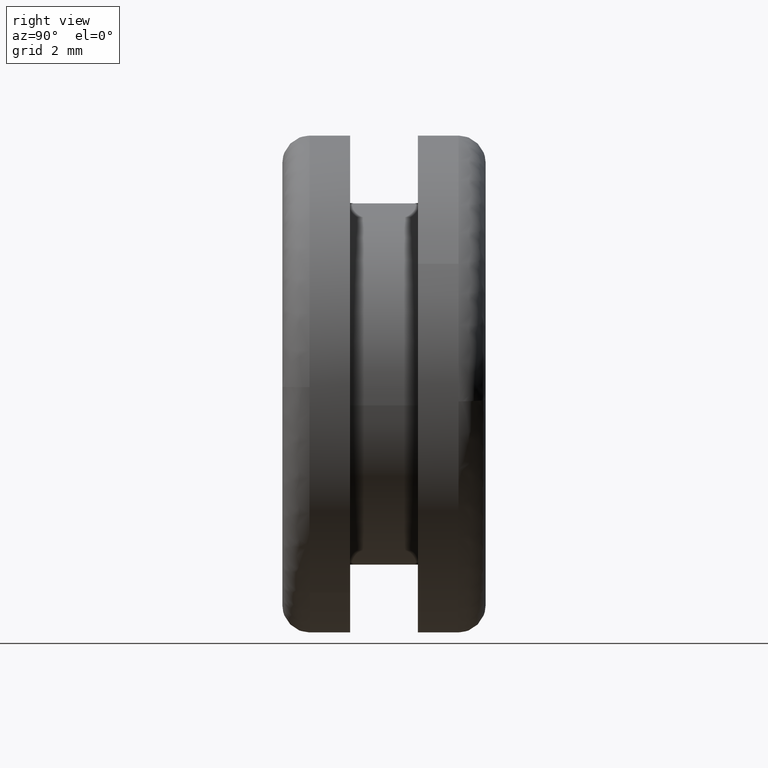
[diagram: clean part render]
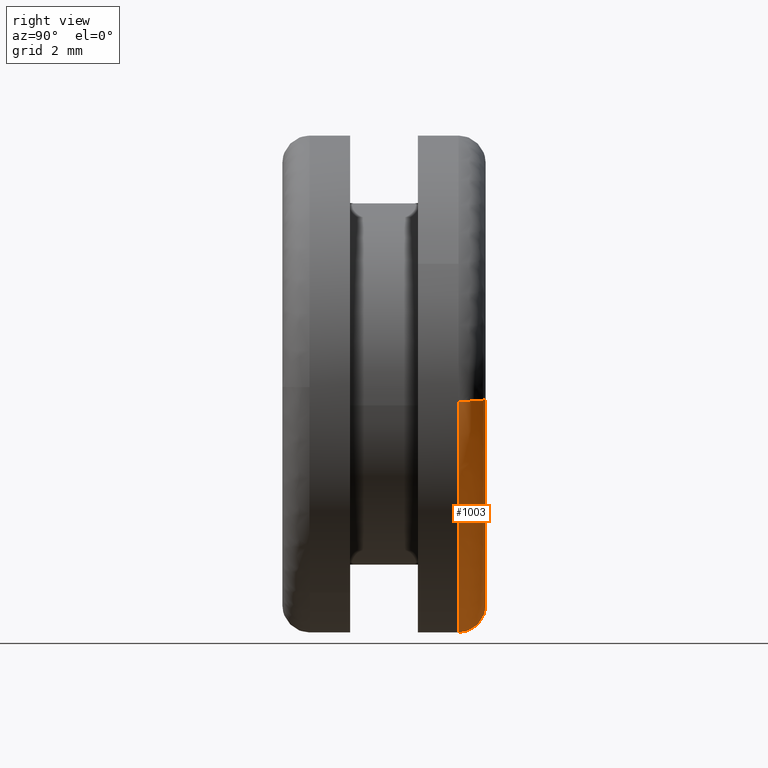
[diagram: same view with one face highlighted and labeled with its STEP entity id]
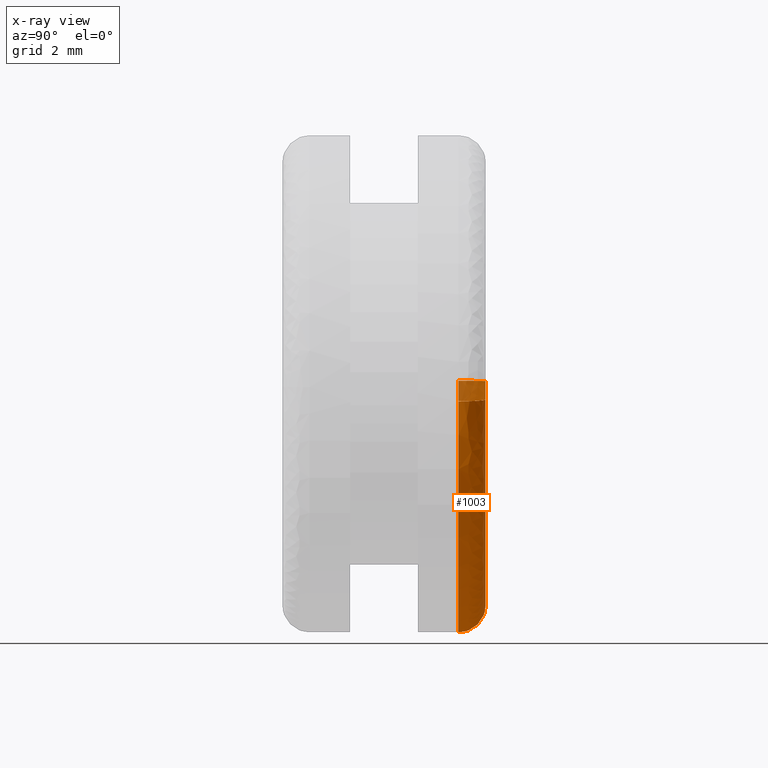
[diagram: x-ray of the same camera — body ghosted, the highlighted face saturated]
A machine part, right view. The second image highlights one B-rep face of the part: STEP entity #1003.
The next image is the same camera in x-ray: the body ghosted, the highlighted face saturated — about 8% of this face is hidden behind the body in this view.
In plain terms, the highlighted face is a freeform B-spline surface patch.
Its self-contained STEP definition (entity closure, byte-faithful):
#563=CARTESIAN_POINT('',(5.486611206122207,3.900000000027497,-0.383532883667365));
#564=VERTEX_POINT('',#563);
#614=CARTESIAN_POINT('',(-5.499565743120950,3.900000000027497,0.069113219361356));
#615=VERTEX_POINT('',#614);
#629=CARTESIAN_POINT('',(0.0,3.900000000000000,-5.500000000000000));
#630=VERTEX_POINT('',#629);
#631=CARTESIAN_POINT('',(-5.499565743120950,3.900000000027497,0.069113219361356));
#632=CARTESIAN_POINT('',(-5.500000000000000,3.900000000000000,0.034557973958313));
#633=CARTESIAN_POINT('',(-5.500000000000000,3.900000000000000,-1.928755E-016));
#634=CARTESIAN_POINT('',(-5.500000000000001,3.899999999999999,-5.500000000000001));
#635=CARTESIAN_POINT('',(0.0,3.900000000000000,-5.500000000000000));
#643=(BOUNDED_CURVE()B_SPLINE_CURVE(2,(#631,#632,#633,#634,#635),.UNSPECIFIED.,.F.,.U.)B_SPLINE_CURVE_WITH_KNOTS((3,2,3),(0.747784295921542,0.750000000000000,1.0),.UNSPECIFIED.)CURVE()GEOMETRIC_REPRESENTATION_ITEM()RATIONAL_B_SPLINE_CURVE((0.994854295643583,0.997404141202089,1.0,0.707106781186548,1.0))REPRESENTATION_ITEM(''));
#644=EDGE_CURVE('',#615,#630,#643,.T.);
#646=CARTESIAN_POINT('',(0.0,3.900000000000000,-5.500000000000000));
#647=CARTESIAN_POINT('',(5.128952659961843,3.900000000000000,-5.500000000000000));
#648=CARTESIAN_POINT('',(5.486611206122207,3.900000000027497,-0.383532883667365));
#656=(BOUNDED_CURVE()B_SPLINE_CURVE(2,(#646,#647,#648),.UNSPECIFIED.,.F.,.U.)B_SPLINE_CURVE_WITH_KNOTS((3,3),(0.0,0.237833686534982),.UNSPECIFIED.)CURVE()GEOMETRIC_REPRESENTATION_ITEM()RATIONAL_B_SPLINE_CURVE((1.0,0.721360504033998,0.972879876386744))REPRESENTATION_ITEM(''));
#657=EDGE_CURVE('',#630,#564,#656,.T.);
#879=CARTESIAN_POINT('',(4.888071801949449,4.500000000000000,-0.341692932736474));
#880=VERTEX_POINT('',#879);
#881=CARTESIAN_POINT('',(4.888071801949449,4.500000000000000,-0.341692932736474));
#882=CARTESIAN_POINT('',(5.486611206067517,4.499999999735634,-0.383532883661093));
#883=CARTESIAN_POINT('',(5.486611206122207,3.900000000027497,-0.383532883667365));
#891=(BOUNDED_CURVE()B_SPLINE_CURVE(2,(#881,#882,#883),.UNSPECIFIED.,.F.,.U.)B_SPLINE_CURVE_WITH_KNOTS((3,3),(-1.725134642829971,-0.274865356812178),.UNSPECIFIED.)CURVE()GEOMETRIC_REPRESENTATION_ITEM()RATIONAL_B_SPLINE_CURVE((0.863472075215113,0.610566959956445,0.863472075339921))REPRESENTATION_ITEM(''));
#892=EDGE_CURVE('',#880,#564,#891,.T.);
#911=CARTESIAN_POINT('',(-4.899613116827728,4.500000000000000,0.061573595447684));
#912=VERTEX_POINT('',#911);
#926=CARTESIAN_POINT('',(-4.899613116827728,4.500000000000001,0.061573595447684));
#927=CARTESIAN_POINT('',(-5.499565743065997,4.499999999541491,0.069113219357744));
#928=CARTESIAN_POINT('',(-5.499565743120951,3.900000000027497,0.069113219361356));
#936=(BOUNDED_CURVE()B_SPLINE_CURVE(2,(#926,#927,#928),.UNSPECIFIED.,.F.,.U.)B_SPLINE_CURVE_WITH_KNOTS((3,3),(-1.725134642498151,-0.274865356812179),.UNSPECIFIED.)CURVE()GEOMETRIC_REPRESENTATION_ITEM()RATIONAL_B_SPLINE_CURVE((0.883342149373452,0.624617224284153,0.883342149619523))REPRESENTATION_ITEM(''));
#937=EDGE_CURVE('',#912,#615,#936,.T.);
#944=CARTESIAN_POINT('',(-4.857893936947161,4.498547604767666,0.061049309157582));
#945=CARTESIAN_POINT('',(-4.918943246104742,4.498547604767666,-4.796844627789580));
#946=CARTESIAN_POINT('',(-0.061049309157583,4.498547604767666,-4.857893936947161));
#947=CARTESIAN_POINT('',(4.526519540871593,4.498547604767665,-4.915546062053692));
#948=CARTESIAN_POINT('',(4.846450894045051,4.498547604767666,-0.338783488952053));
#949=CARTESIAN_POINT('',(-5.546084300077691,4.546522521817598,0.069697819558043));
#950=CARTESIAN_POINT('',(-5.615782119635735,4.546522521817599,-5.476386480519647));
#951=CARTESIAN_POINT('',(-0.069697819558044,4.546522521817598,-5.546084300077691));
#952=CARTESIAN_POINT('',(5.167765967200014,4.546522521817599,-5.611903675730915));
#953=CARTESIAN_POINT('',(5.533020185996930,4.546522521817598,-0.386777030044277));
#954=CARTESIAN_POINT('',(-5.498113481384098,3.858277796135968,0.069094968738536));
#955=CARTESIAN_POINT('',(-5.567208450122635,3.858277796135969,-5.429018512645564));
#956=CARTESIAN_POINT('',(-0.069094968738537,3.858277796135968,-5.498113481384098));
#957=CARTESIAN_POINT('',(5.123067410371367,3.858277796135968,-5.563363552792171));
#958=CARTESIAN_POINT('',(5.485162365269843,3.858277796135969,-0.383431604735318));
#966=(BOUNDED_SURFACE()B_SPLINE_SURFACE(2,2,((#944,#949,#954),(#945,#950,#955),(#946,#951,#956),(#947,#952,#957),(#948,#953,#958)),.UNSPECIFIED.,.F.,.F.,.U.)B_SPLINE_SURFACE_WITH_KNOTS((3,2,3),(3,3),(0.0,9.110291996180614,17.856172312514001),(0.0,1.093424524682852),.UNSPECIFIED.)GEOMETRIC_REPRESENTATION_ITEM()RATIONAL_B_SPLINE_SURFACE(((0.910479939527730,0.597479527817840,0.910479752397927),(0.643806539374376,0.422481825740131,0.643806407053623),(0.910479939527730,0.597479527817840,0.910479752397927),(0.654473475380510,0.429481733823239,0.654473340867395),(0.889999422395953,0.584039704298272,0.889999239475484)))REPRESENTATION_ITEM('')SURFACE());
#967=ORIENTED_EDGE('',*,*,#657,.F.);
#968=ORIENTED_EDGE('',*,*,#644,.F.);
#969=ORIENTED_EDGE('',*,*,#937,.F.);
#970=CARTESIAN_POINT('',(0.0,4.500000000000000,-4.900000000000000));
#971=VERTEX_POINT('',#970);
#972=CARTESIAN_POINT('',(-4.899613116827728,4.500000000000000,0.061573595447684));
#973=CARTESIAN_POINT('',(-4.900000000000000,4.499999999999999,0.030788013176639));
#974=CARTESIAN_POINT('',(-4.900000000000000,4.500000000000000,-1.928755E-016));
#975=CARTESIAN_POINT('',(-4.899999999999999,4.500000000000000,-4.899999999999999));
#976=CARTESIAN_POINT('',(0.0,4.500000000000000,-4.900000000000000));
#984=(BOUNDED_CURVE()B_SPLINE_CURVE(2,(#972,#973,#974,#975,#976),.UNSPECIFIED.,.F.,.U.)B_SPLINE_CURVE_WITH_KNOTS((3,2,3),(0.747784295920553,0.750000000000000,1.0),.UNSPECIFIED.)CURVE()GEOMETRIC_REPRESENTATION_ITEM()RATIONAL_B_SPLINE_CURVE((0.994854295641306,0.997404141200930,1.0,0.707106781186547,1.0))REPRESENTATION_ITEM(''));
#985=EDGE_CURVE('',#912,#971,#984,.T.);
#986=ORIENTED_EDGE('',*,*,#985,.T.);
#987=CARTESIAN_POINT('',(0.0,4.500000000000000,-4.900000000000000));
#988=CARTESIAN_POINT('',(4.569430551592206,4.499999999999999,-4.900000000000000));
#989=CARTESIAN_POINT('',(4.888071801949449,4.500000000000001,-0.341692932736474));
#997=(BOUNDED_CURVE()B_SPLINE_CURVE(2,(#987,#988,#989),.UNSPECIFIED.,.F.,.U.)B_SPLINE_CURVE_WITH_KNOTS((3,3),(0.0,0.237833686534600),.UNSPECIFIED.)CURVE()GEOMETRIC_REPRESENTATION_ITEM()RATIONAL_B_SPLINE_CURVE((1.0,0.721360504034445,0.972879876385937))REPRESENTATION_ITEM(''));
#998=EDGE_CURVE('',#971,#880,#997,.T.);
#999=ORIENTED_EDGE('',*,*,#998,.T.);
#1000=ORIENTED_EDGE('',*,*,#892,.T.);
#1001=EDGE_LOOP('',(#967,#968,#969,#986,#999,#1000));
#1002=FACE_OUTER_BOUND('',#1001,.T.);
#1003=ADVANCED_FACE('',(#1002),#966,.T.);